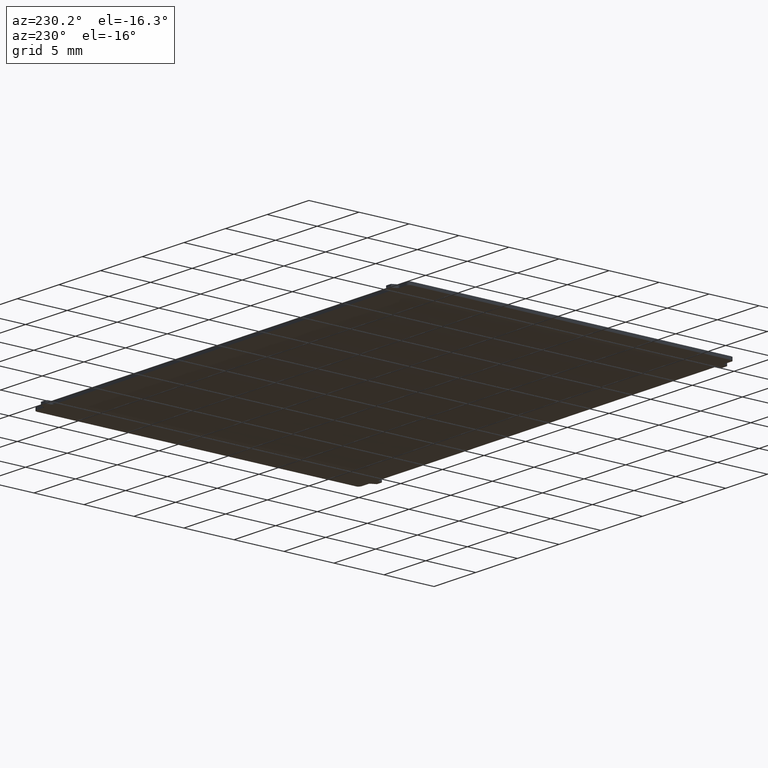
[diagram: clean part render]
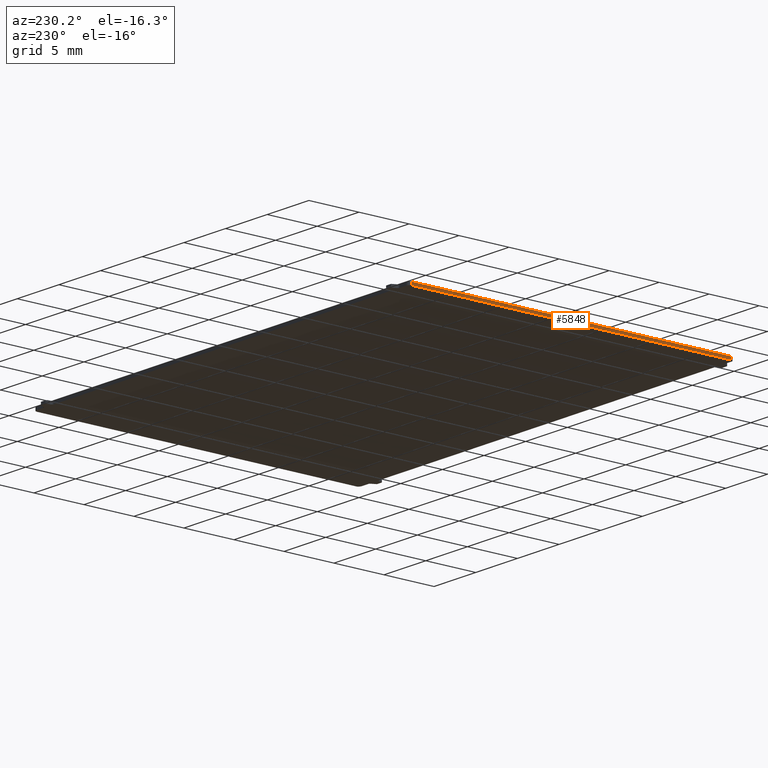
[diagram: same view with one face highlighted and labeled with its STEP entity id]
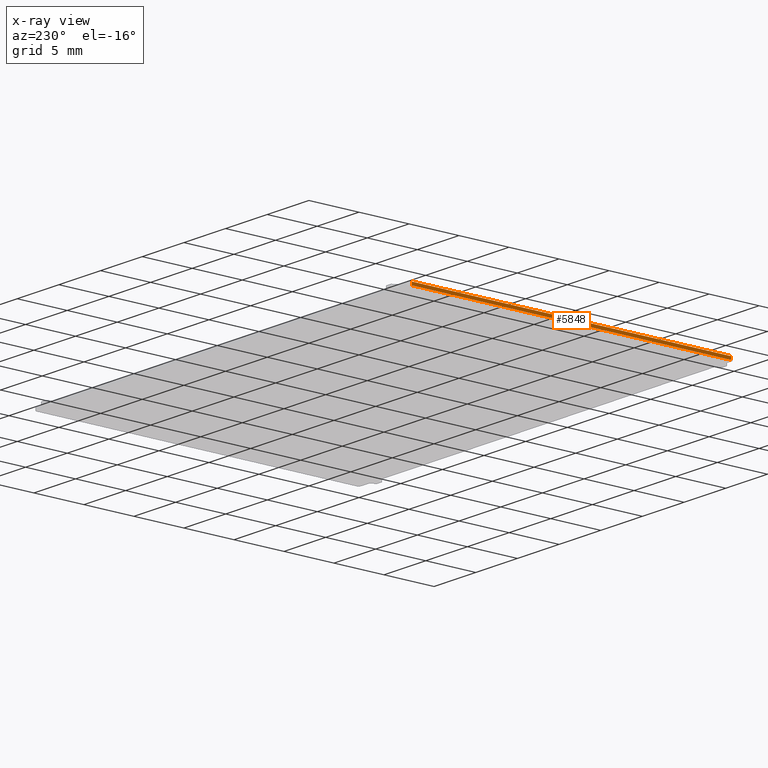
[diagram: x-ray of the same camera — body ghosted, the highlighted face saturated]
A machine part, auxiliary view. The second image highlights one B-rep face of the part: STEP entity #5848.
The next image is the same camera in x-ray: the body ghosted, the highlighted face saturated — about 0% of this face is hidden behind the body in this view.
In plain terms, the highlighted planar face has unit normal (1, -0.0002, 0).
Its self-contained STEP definition (entity closure, byte-faithful):
#83 = PLANE('',#84);
#84 = AXIS2_PLACEMENT_3D('',#85,#86,#87);
#85 = CARTESIAN_POINT('',(1.10000034,3.921760000011E-003,0.30000194));
#86 = DIRECTION('',(0.E+000,0.E+000,1.));
#87 = DIRECTION('',(1.,0.E+000,-0.E+000));
#137 = PLANE('',#138);
#138 = AXIS2_PLACEMENT_3D('',#139,#140,#141);
#139 = CARTESIAN_POINT('',(1.10000034,3.921760000011E-003,0.E+000));
#140 = DIRECTION('',(0.E+000,0.E+000,1.));
#141 = DIRECTION('',(1.,0.E+000,-0.E+000));
#5740 = PLANE('',#5741);
#5741 = AXIS2_PLACEMENT_3D('',#5742,#5743,#5744);
#5742 = CARTESIAN_POINT('',(1.740662E-002,32.31705246,0.E+000));
#5743 = DIRECTION('',(0.989123222695,-0.147089259724,0.E+000));
#5744 = DIRECTION('',(-0.147089259724,-0.989123222695,0.E+000));
#5778 = VERTEX_POINT('',#5779);
#5779 = CARTESIAN_POINT('',(0.E+000,32.1999991,0.30000194));
#5800 = EDGE_CURVE('',#5801,#5778,#5803,.T.);
#5801 = VERTEX_POINT('',#5802);
#5802 = CARTESIAN_POINT('',(0.E+000,32.1999991,0.E+000));
#5803 = SURFACE_CURVE('',#5804,(#5808,#5815),.PCURVE_S1.);
#5804 = LINE('',#5805,#5806);
#5805 = CARTESIAN_POINT('',(0.E+000,32.1999991,0.E+000));
#5806 = VECTOR('',#5807,1.);
#5807 = DIRECTION('',(0.E+000,0.E+000,1.));
#5808 = PCURVE('',#5740,#5809);
#5809 = DEFINITIONAL_REPRESENTATION('',(#5810),#5814);
#5810 = LINE('',#5811,#5812);
#5811 = CARTESIAN_POINT('',(0.118340523521,0.E+000));
#5812 = VECTOR('',#5813,1.);
#5813 = DIRECTION('',(0.E+000,-1.));
#5814 = ( GEOMETRIC_REPRESENTATION_CONTEXT(2) 
PARAMETRIC_REPRESENTATION_CONTEXT() REPRESENTATION_CONTEXT('2D SPACE',''
  ) );
#5815 = PCURVE('',#5816,#5821);
#5816 = PLANE('',#5817);
#5817 = AXIS2_PLACEMENT_3D('',#5818,#5819,#5820);
#5818 = CARTESIAN_POINT('',(0.E+000,32.1999991,0.E+000));
#5819 = DIRECTION('',(0.999999983026,-1.842495430566E-004,0.E+000));
#5820 = DIRECTION('',(-1.842495430566E-004,-0.999999983026,0.E+000));
#5821 = DEFINITIONAL_REPRESENTATION('',(#5822),#5826);
#5822 = LINE('',#5823,#5824);
#5823 = CARTESIAN_POINT('',(0.E+000,0.E+000));
#5824 = VECTOR('',#5825,1.);
#5825 = DIRECTION('',(0.E+000,-1.));
#5826 = ( GEOMETRIC_REPRESENTATION_CONTEXT(2) 
PARAMETRIC_REPRESENTATION_CONTEXT() REPRESENTATION_CONTEXT('2D SPACE',''
  ) );
#5848 = ADVANCED_FACE('',(#5849),#5816,.F.);
#5849 = FACE_BOUND('',#5850,.F.);
#5850 = EDGE_LOOP('',(#5851,#5852,#5875,#5903));
#5851 = ORIENTED_EDGE('',*,*,#5800,.T.);
#5852 = ORIENTED_EDGE('',*,*,#5853,.T.);
#5853 = EDGE_CURVE('',#5778,#5854,#5856,.T.);
#5854 = VERTEX_POINT('',#5855);
#5855 = CARTESIAN_POINT('',(-5.877560000002E-003,0.30000194,0.30000194)
  );
#5856 = SURFACE_CURVE('',#5857,(#5861,#5868),.PCURVE_S1.);
#5857 = LINE('',#5858,#5859);
#5858 = CARTESIAN_POINT('',(0.E+000,32.1999991,0.30000194));
#5859 = VECTOR('',#5860,1.);
#5860 = DIRECTION('',(-1.842495430566E-004,-0.999999983026,0.E+000));
#5861 = PCURVE('',#5816,#5862);
#5862 = DEFINITIONAL_REPRESENTATION('',(#5863),#5867);
#5863 = LINE('',#5864,#5865);
#5864 = CARTESIAN_POINT('',(0.E+000,-0.30000194));
#5865 = VECTOR('',#5866,1.);
#5866 = DIRECTION('',(1.,0.E+000));
#5867 = ( GEOMETRIC_REPRESENTATION_CONTEXT(2) 
PARAMETRIC_REPRESENTATION_CONTEXT() REPRESENTATION_CONTEXT('2D SPACE',''
  ) );
#5868 = PCURVE('',#83,#5869);
#5869 = DEFINITIONAL_REPRESENTATION('',(#5870),#5874);
#5870 = LINE('',#5871,#5872);
#5871 = CARTESIAN_POINT('',(-1.10000034,32.19607734));
#5872 = VECTOR('',#5873,1.);
#5873 = DIRECTION('',(-1.842495430566E-004,-0.999999983026));
#5874 = ( GEOMETRIC_REPRESENTATION_CONTEXT(2) 
PARAMETRIC_REPRESENTATION_CONTEXT() REPRESENTATION_CONTEXT('2D SPACE',''
  ) );
#5875 = ORIENTED_EDGE('',*,*,#5876,.F.);
#5876 = EDGE_CURVE('',#5877,#5854,#5879,.T.);
#5877 = VERTEX_POINT('',#5878);
#5878 = CARTESIAN_POINT('',(-5.877560000002E-003,0.30000194,0.E+000));
#5879 = SURFACE_CURVE('',#5880,(#5884,#5891),.PCURVE_S1.);
#5880 = LINE('',#5881,#5882);
#5881 = CARTESIAN_POINT('',(-5.877560000002E-003,0.30000194,0.E+000));
#5882 = VECTOR('',#5883,1.);
#5883 = DIRECTION('',(0.E+000,0.E+000,1.));
#5884 = PCURVE('',#5816,#5885);
#5885 = DEFINITIONAL_REPRESENTATION('',(#5886),#5890);
#5886 = LINE('',#5887,#5888);
#5887 = CARTESIAN_POINT('',(31.899997701469,0.E+000));
#5888 = VECTOR('',#5889,1.);
#5889 = DIRECTION('',(0.E+000,-1.));
#5890 = ( GEOMETRIC_REPRESENTATION_CONTEXT(2) 
PARAMETRIC_REPRESENTATION_CONTEXT() REPRESENTATION_CONTEXT('2D SPACE',''
  ) );
#5891 = PCURVE('',#5892,#5897);
#5892 = PLANE('',#5893);
#5893 = AXIS2_PLACEMENT_3D('',#5894,#5895,#5896);
#5894 = CARTESIAN_POINT('',(-5.877560000002E-003,0.30000194,0.E+000));
#5895 = DIRECTION('',(0.980783967241,0.195096923611,-0.E+000));
#5896 = DIRECTION('',(0.195096923611,-0.980783967241,0.E+000));
#5897 = DEFINITIONAL_REPRESENTATION('',(#5898),#5902);
#5898 = LINE('',#5899,#5900);
#5899 = CARTESIAN_POINT('',(0.E+000,0.E+000));
#5900 = VECTOR('',#5901,1.);
#5901 = DIRECTION('',(0.E+000,-1.));
#5902 = ( GEOMETRIC_REPRESENTATION_CONTEXT(2) 
PARAMETRIC_REPRESENTATION_CONTEXT() REPRESENTATION_CONTEXT('2D SPACE',''
  ) );
#5903 = ORIENTED_EDGE('',*,*,#5904,.F.);
#5904 = EDGE_CURVE('',#5801,#5877,#5905,.T.);
#5905 = SURFACE_CURVE('',#5906,(#5910,#5917),.PCURVE_S1.);
#5906 = LINE('',#5907,#5908);
#5907 = CARTESIAN_POINT('',(0.E+000,32.1999991,0.E+000));
#5908 = VECTOR('',#5909,1.);
#5909 = DIRECTION('',(-1.842495430566E-004,-0.999999983026,0.E+000));
#5910 = PCURVE('',#5816,#5911);
#5911 = DEFINITIONAL_REPRESENTATION('',(#5912),#5916);
#5912 = LINE('',#5913,#5914);
#5913 = CARTESIAN_POINT('',(0.E+000,0.E+000));
#5914 = VECTOR('',#5915,1.);
#5915 = DIRECTION('',(1.,0.E+000));
#5916 = ( GEOMETRIC_REPRESENTATION_CONTEXT(2) 
PARAMETRIC_REPRESENTATION_CONTEXT() REPRESENTATION_CONTEXT('2D SPACE',''
  ) );
#5917 = PCURVE('',#137,#5918);
#5918 = DEFINITIONAL_REPRESENTATION('',(#5919),#5923);
#5919 = LINE('',#5920,#5921);
#5920 = CARTESIAN_POINT('',(-1.10000034,32.19607734));
#5921 = VECTOR('',#5922,1.);
#5922 = DIRECTION('',(-1.842495430566E-004,-0.999999983026));
#5923 = ( GEOMETRIC_REPRESENTATION_CONTEXT(2) 
PARAMETRIC_REPRESENTATION_CONTEXT() REPRESENTATION_CONTEXT('2D SPACE',''
  ) );